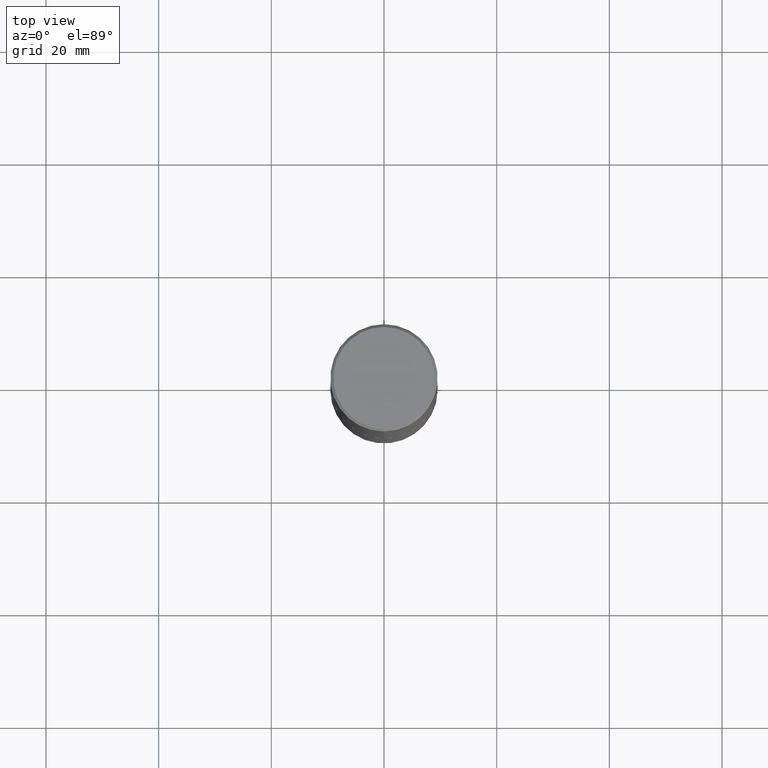
[diagram: clean part render]
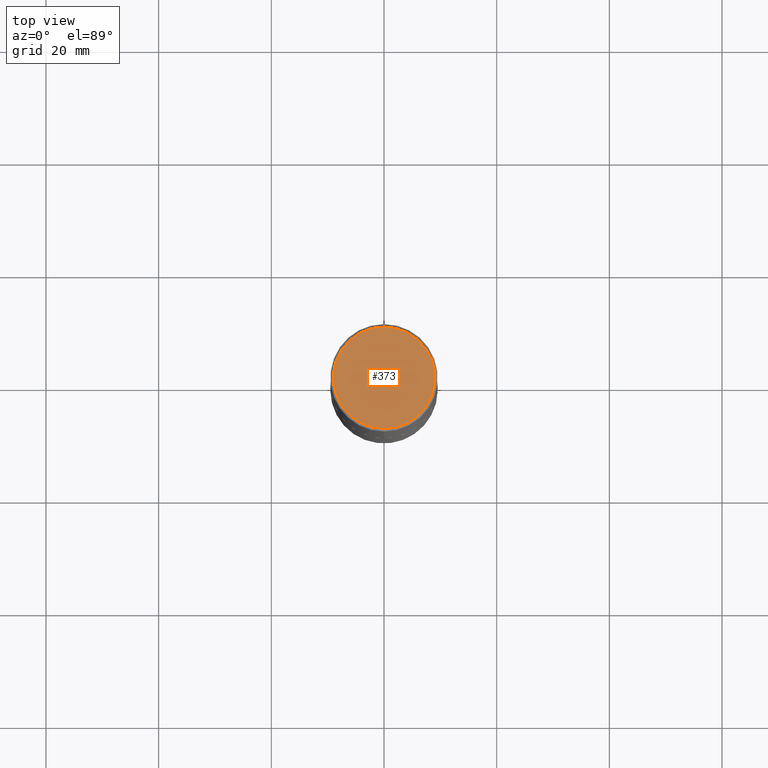
[diagram: same view with one face highlighted and labeled with its STEP entity id]
A machine part, top view. The second image highlights one B-rep face of the part: STEP entity #373.
In plain terms, the highlighted planar face has unit normal (0, -0, -1).
Its self-contained STEP definition (entity closure, byte-faithful):
#4 = ORIENTED_EDGE ( 'NONE', *, *, #368, .T. ) ;
#10 = VERTEX_POINT ( 'NONE', #196 ) ;
#20 = DIRECTION ( 'NONE',  ( 6.982962677686265922E-15, 1.000000000000000000, -3.490662795793665557E-15 ) ) ;
#115 = EDGE_CURVE ( 'NONE', #10, #325, #309, .T. ) ;
#127 = AXIS2_PLACEMENT_3D ( 'NONE', #140, #376, #385 ) ;
#138 = DIRECTION ( 'NONE',  ( -6.982962677686265922E-15, -1.000000000000000000, 3.490662795793665557E-15 ) ) ;
#140 = CARTESIAN_POINT ( 'NONE',  ( -1.141397163745304909E-45, 1.628849886601155835E-31, 4.666305460853910467E-17 ) ) ;
#178 = CARTESIAN_POINT ( 'NONE',  ( -1.141397163745304909E-45, 1.628849886601155835E-31, 4.666305460853910467E-17 ) ) ;
#196 = CARTESIAN_POINT ( 'NONE',  ( -2.504081769186608216E-15, -0.3549999999999999822, 1.285848347115290366E-15 ) ) ;
#214 = AXIS2_PLACEMENT_3D ( 'NONE', #375, #372, #20 ) ;
#235 = FACE_OUTER_BOUND ( 'NONE', #265, .T. ) ;
#265 = EDGE_LOOP ( 'NONE', ( #4, #269 ) ) ;
#269 = ORIENTED_EDGE ( 'NONE', *, *, #115, .T. ) ;
#305 = DIRECTION ( 'NONE',  ( -2.446040391741596606E-29, 3.490662795793665557E-15, 1.000000000000000000 ) ) ;
#309 = CIRCLE ( 'NONE', #127, 0.3549999999999999822 ) ;
#311 = CARTESIAN_POINT ( 'NONE',  ( 2.548781377355487113E-15, 0.3549999999999999822, -1.192522237898212341E-15 ) ) ;
#325 = VERTEX_POINT ( 'NONE', #311 ) ;
#368 = EDGE_CURVE ( 'NONE', #325, #10, #370, .T. ) ;
#370 = CIRCLE ( 'NONE', #388, 0.3549999999999999822 ) ;
#372 = DIRECTION ( 'NONE',  ( 2.446040391741596045E-29, -3.490662795793665557E-15, -1.000000000000000000 ) ) ;
#373 = ADVANCED_FACE ( 'NONE', ( #235 ), #377, .F. ) ;
#375 = CARTESIAN_POINT ( 'NONE',  ( 2.478951750578624209E-15, 0.3549999999999999822, -1.215853765202481601E-15 ) ) ;
#376 = DIRECTION ( 'NONE',  ( -2.446040391741596606E-29, 3.490662795793665557E-15, 1.000000000000000000 ) ) ;
#377 = PLANE ( 'NONE',  #214 ) ;
#385 = DIRECTION ( 'NONE',  ( -6.982962677686265922E-15, -1.000000000000000000, 3.490662795793665557E-15 ) ) ;
#388 = AXIS2_PLACEMENT_3D ( 'NONE', #178, #305, #138 ) ;